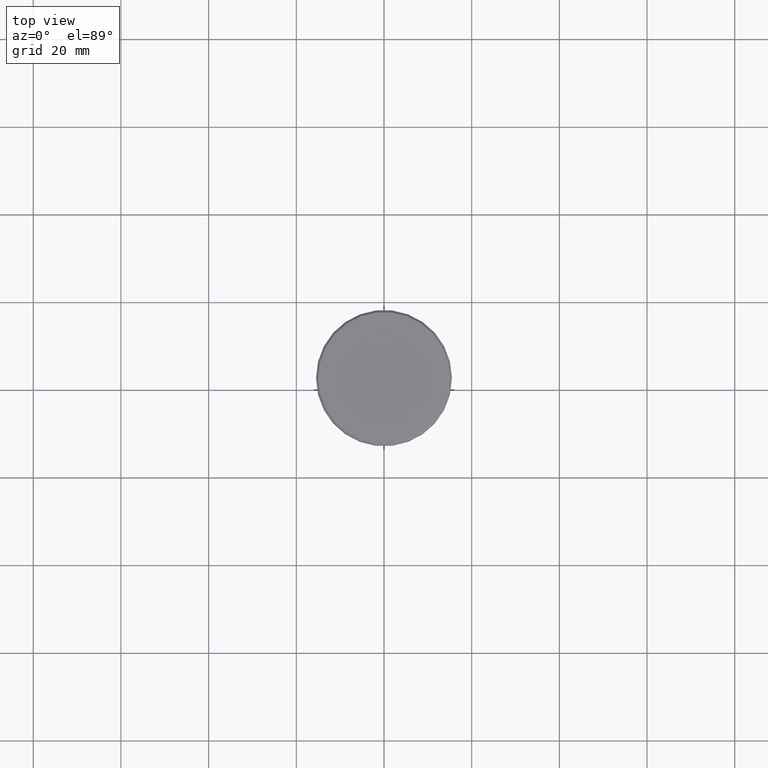
[diagram: clean part render]
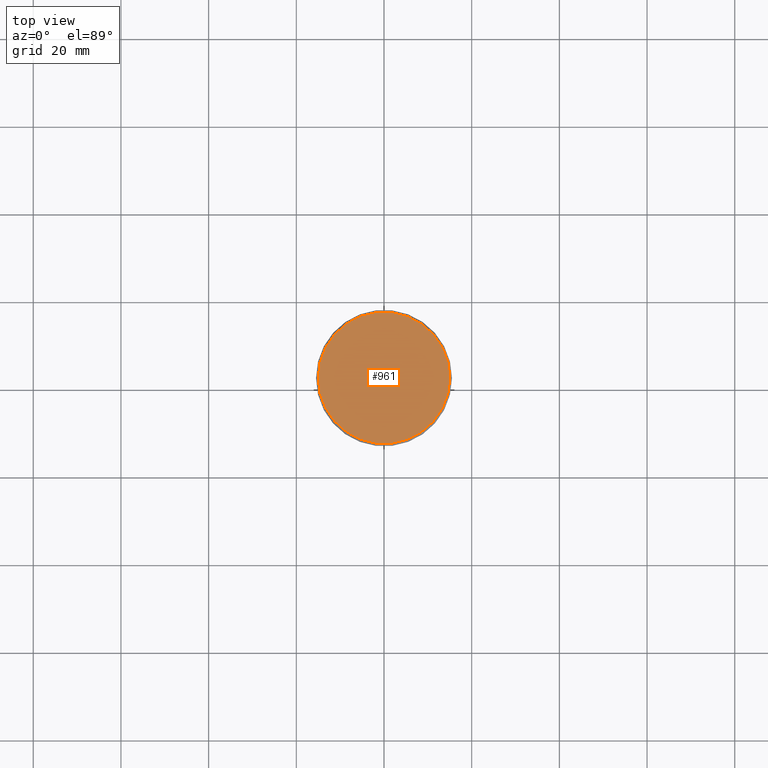
[diagram: same view with one face highlighted and labeled with its STEP entity id]
A machine part, top view. The second image highlights one B-rep face of the part: STEP entity #961.
In plain terms, the highlighted planar face has unit normal (0, -0, 1).
Its self-contained STEP definition (entity closure, byte-faithful):
#24 = AXIS2_PLACEMENT_3D ( 'NONE', #505, #863, #1054 ) ;
#77 = DIRECTION ( 'NONE',  ( -0.000000000000000000, -0.000000000000000000, 1.000000000000000000 ) ) ;
#132 = AXIS2_PLACEMENT_3D ( 'NONE', #898, #77, #616 ) ;
#141 = CARTESIAN_POINT ( 'NONE',  ( -15.00000000000001421, 0.000000000000000000, 0.000000000000000000 ) ) ;
#171 = EDGE_CURVE ( 'NONE', #495, #772, #854, .T. ) ;
#252 = FACE_OUTER_BOUND ( 'NONE', #504, .T. ) ;
#260 = ORIENTED_EDGE ( 'NONE', *, *, #171, .T. ) ;
#354 = CARTESIAN_POINT ( 'NONE',  ( 15.00000000000001421, 1.867586368699714559E-15, 0.000000000000000000 ) ) ;
#355 = CIRCLE ( 'NONE', #132, 15.00000000000001421 ) ;
#435 = CARTESIAN_POINT ( 'NONE',  ( 0.000000000000000000, 0.000000000000000000, 0.000000000000000000 ) ) ;
#495 = VERTEX_POINT ( 'NONE', #354 ) ;
#504 = EDGE_LOOP ( 'NONE', ( #652, #260 ) ) ;
#505 = CARTESIAN_POINT ( 'NONE',  ( 0.000000000000000000, 0.000000000000000000, 0.000000000000000000 ) ) ;
#521 = PLANE ( 'NONE',  #663 ) ;
#554 = EDGE_CURVE ( 'NONE', #772, #495, #355, .T. ) ;
#616 = DIRECTION ( 'NONE',  ( 1.000000000000000000, 0.000000000000000000, 0.000000000000000000 ) ) ;
#652 = ORIENTED_EDGE ( 'NONE', *, *, #554, .T. ) ;
#663 = AXIS2_PLACEMENT_3D ( 'NONE', #435, #903, #700 ) ;
#700 = DIRECTION ( 'NONE',  ( 1.000000000000000000, 0.000000000000000000, 0.000000000000000000 ) ) ;
#772 = VERTEX_POINT ( 'NONE', #141 ) ;
#854 = CIRCLE ( 'NONE', #24, 15.00000000000001421 ) ;
#863 = DIRECTION ( 'NONE',  ( -0.000000000000000000, -0.000000000000000000, 1.000000000000000000 ) ) ;
#898 = CARTESIAN_POINT ( 'NONE',  ( 0.000000000000000000, 0.000000000000000000, 0.000000000000000000 ) ) ;
#903 = DIRECTION ( 'NONE',  ( 0.000000000000000000, -0.000000000000000000, 1.000000000000000000 ) ) ;
#961 = ADVANCED_FACE ( 'NONE', ( #252 ), #521, .T. ) ;
#1054 = DIRECTION ( 'NONE',  ( 1.000000000000000000, 0.000000000000000000, 0.000000000000000000 ) ) ;